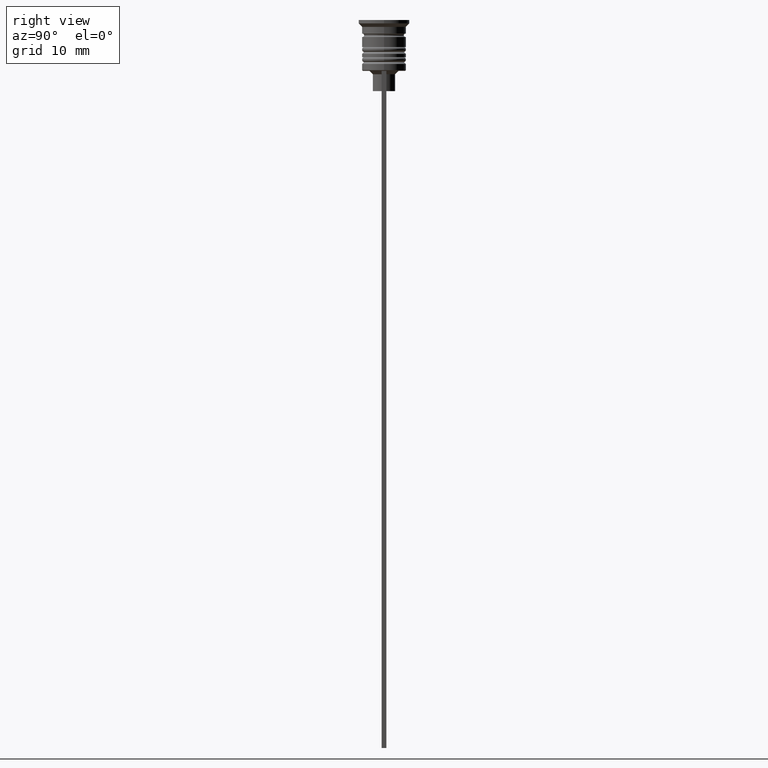
[diagram: clean part render]
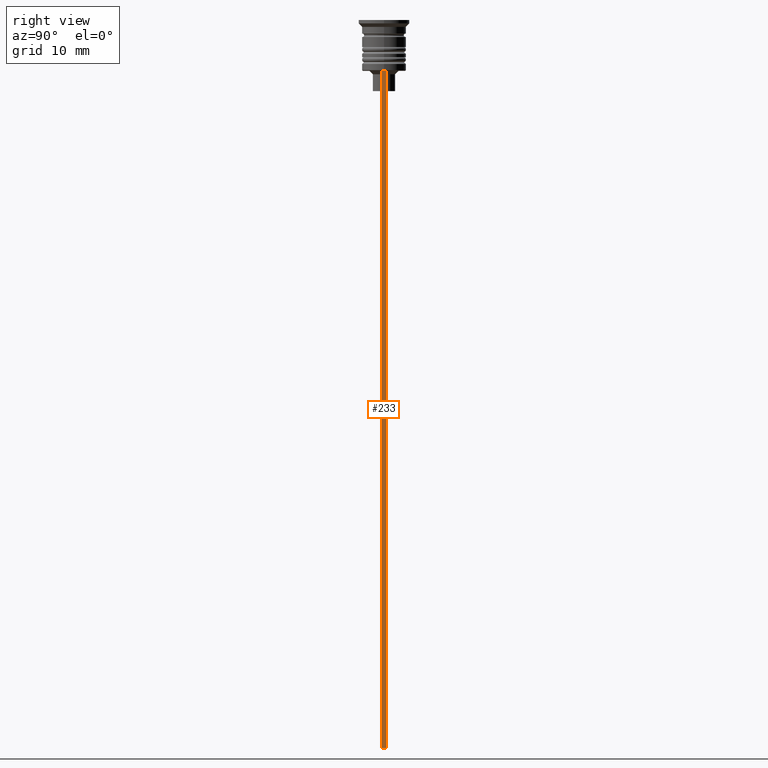
[diagram: same view with one face highlighted and labeled with its STEP entity id]
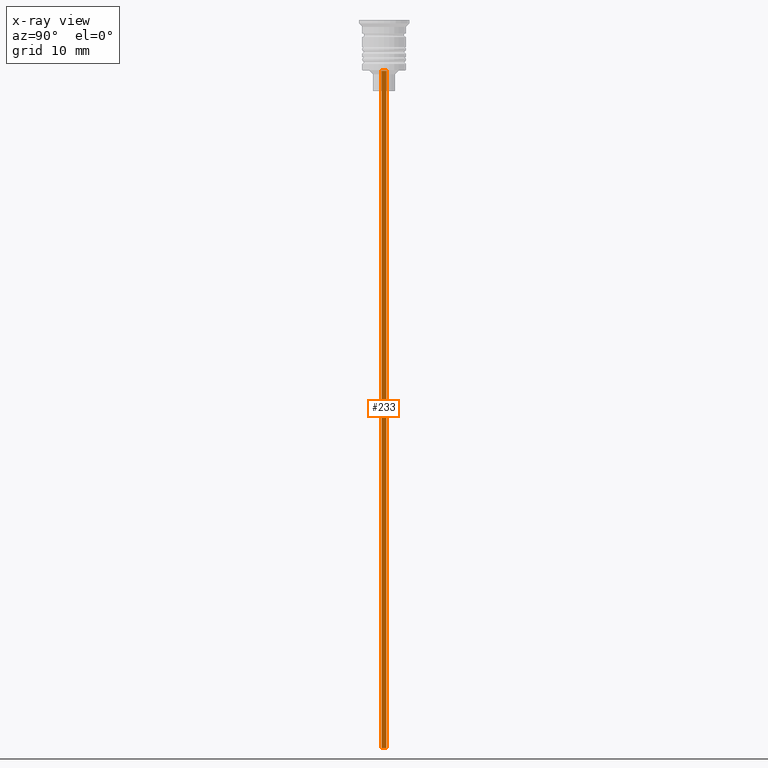
[diagram: x-ray of the same camera — body ghosted, the highlighted face saturated]
A machine part, right view. The second image highlights one B-rep face of the part: STEP entity #233.
The next image is the same camera in x-ray: the body ghosted, the highlighted face saturated — about 0% of this face is hidden behind the body in this view.
In plain terms, the highlighted planar face has unit normal (-1, 0, 0).
Its self-contained STEP definition (entity closure, byte-faithful):
#7 = VERTEX_POINT ( 'NONE', #329 ) ;
#119 = CARTESIAN_POINT ( 'NONE',  ( 2.999999999999995559, -0.3500000000000000333, -7.500000000000000000 ) ) ;
#145 = CARTESIAN_POINT ( 'NONE',  ( 2.999999999999995559, -0.3500000000000000333, -1.459304675784417915 ) ) ;
#204 = ORIENTED_EDGE ( 'NONE', *, *, #1014, .T. ) ;
#215 = ORIENTED_EDGE ( 'NONE', *, *, #1365, .T. ) ;
#233 = ADVANCED_FACE ( 'NONE', ( #2170 ), #1355, .F. ) ;
#263 = LINE ( 'NONE', #1233, #2124 ) ;
#307 = CARTESIAN_POINT ( 'NONE',  ( 2.999999999999995559, -0.3500000000000000333, -107.5000000000000000 ) ) ;
#329 = CARTESIAN_POINT ( 'NONE',  ( 2.999999999999995559, 0.3500000000000000333, -107.5000000000000000 ) ) ;
#449 = LINE ( 'NONE', #145, #521 ) ;
#499 = EDGE_CURVE ( 'NONE', #1172, #7, #1952, .T. ) ;
#521 = VECTOR ( 'NONE', #1302, 1000.000000000000000 ) ;
#571 = AXIS2_PLACEMENT_3D ( 'NONE', #1657, #2015, #1512 ) ;
#619 = CARTESIAN_POINT ( 'NONE',  ( 2.999999999999995559, 0.3500000000000000333, -1.459304675784417915 ) ) ;
#737 = DIRECTION ( 'NONE',  ( 0.000000000000000000, -1.000000000000000000, 0.000000000000000000 ) ) ;
#792 = DIRECTION ( 'NONE',  ( 0.000000000000000000, 0.000000000000000000, -1.000000000000000000 ) ) ;
#795 = EDGE_LOOP ( 'NONE', ( #1788, #1085, #204, #215 ) ) ;
#838 = EDGE_CURVE ( 'NONE', #1172, #1605, #263, .T. ) ;
#1014 = EDGE_CURVE ( 'NONE', #1605, #2098, #449, .T. ) ;
#1085 = ORIENTED_EDGE ( 'NONE', *, *, #838, .T. ) ;
#1111 = CARTESIAN_POINT ( 'NONE',  ( 2.999999999999995559, 0.3500000000000000333, -7.500000000000000000 ) ) ;
#1168 = LINE ( 'NONE', #307, #1411 ) ;
#1172 = VERTEX_POINT ( 'NONE', #1111 ) ;
#1233 = CARTESIAN_POINT ( 'NONE',  ( 2.999999999999995559, -0.3500000000000000333, -7.500000000000000000 ) ) ;
#1302 = DIRECTION ( 'NONE',  ( 0.000000000000000000, 0.000000000000000000, -1.000000000000000000 ) ) ;
#1355 = PLANE ( 'NONE',  #571 ) ;
#1365 = EDGE_CURVE ( 'NONE', #2098, #7, #1168, .T. ) ;
#1411 = VECTOR ( 'NONE', #2017, 1000.000000000000000 ) ;
#1512 = DIRECTION ( 'NONE',  ( 0.000000000000000000, 0.000000000000000000, 1.000000000000000000 ) ) ;
#1534 = CARTESIAN_POINT ( 'NONE',  ( 2.999999999999995559, -0.3500000000000000333, -107.5000000000000000 ) ) ;
#1605 = VERTEX_POINT ( 'NONE', #119 ) ;
#1657 = CARTESIAN_POINT ( 'NONE',  ( 2.999999999999995559, -0.3500000000000000333, -1.459304675784417915 ) ) ;
#1788 = ORIENTED_EDGE ( 'NONE', *, *, #499, .F. ) ;
#1952 = LINE ( 'NONE', #619, #2052 ) ;
#2015 = DIRECTION ( 'NONE',  ( -1.000000000000000000, 0.000000000000000000, 0.000000000000000000 ) ) ;
#2017 = DIRECTION ( 'NONE',  ( 0.000000000000000000, 1.000000000000000000, 0.000000000000000000 ) ) ;
#2052 = VECTOR ( 'NONE', #792, 1000.000000000000000 ) ;
#2098 = VERTEX_POINT ( 'NONE', #1534 ) ;
#2124 = VECTOR ( 'NONE', #737, 1000.000000000000000 ) ;
#2170 = FACE_OUTER_BOUND ( 'NONE', #795, .T. ) ;